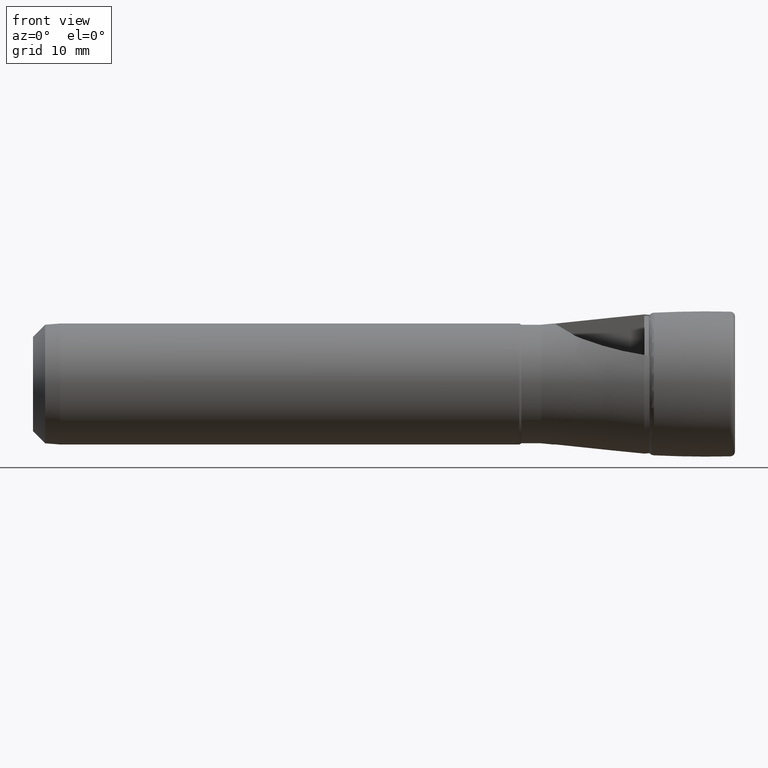
[diagram: clean part render]
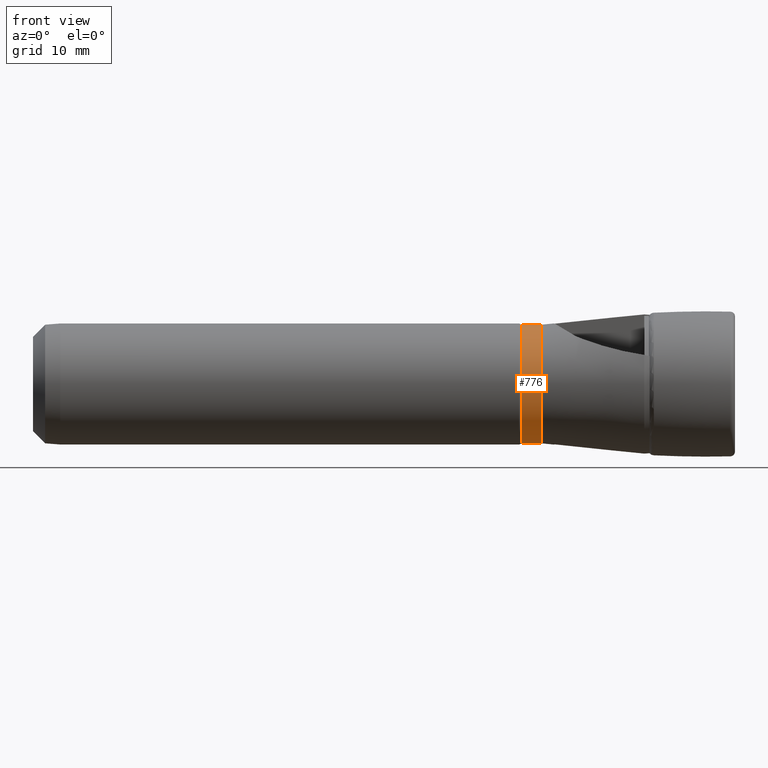
[diagram: same view with one face highlighted and labeled with its STEP entity id]
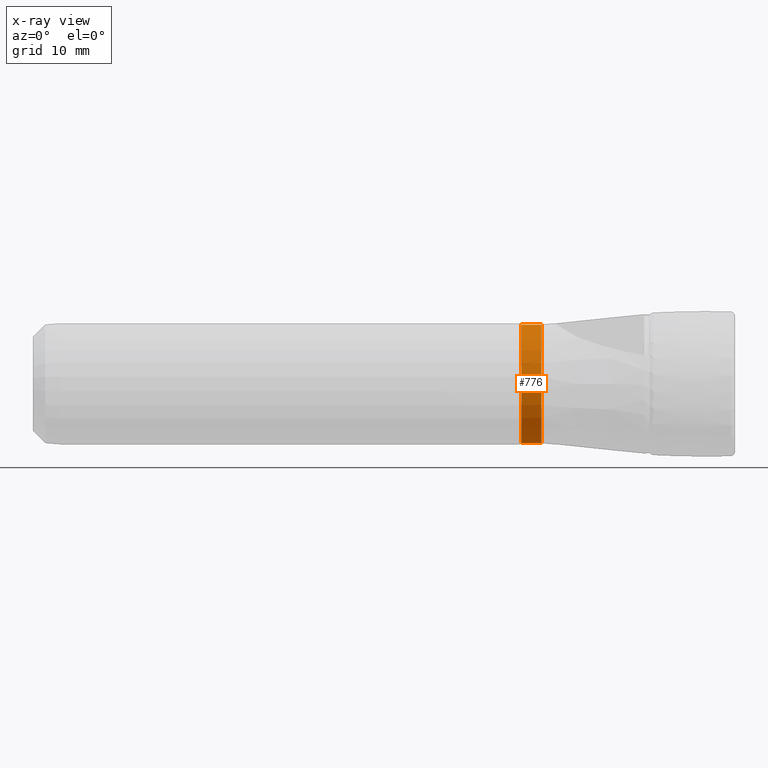
[diagram: x-ray of the same camera — body ghosted, the highlighted face saturated]
A machine part, front view. The second image highlights one B-rep face of the part: STEP entity #776.
The next image is the same camera in x-ray: the body ghosted, the highlighted face saturated — about 0% of this face is hidden behind the body in this view.
In plain terms, the highlighted cylindrical surface (partial cylindrical patch) has radius 4.9 mm, axis along (1, -0, -0).
Its self-contained STEP definition (entity closure, byte-faithful):
#391 = VECTOR ( 'NONE', #2694, 1000.000000000000000 ) ;
#403 = VECTOR ( 'NONE', #2687, 1000.000000000000000 ) ;
#472 = EDGE_LOOP ( 'NONE', ( #3098, #3140, #3177, #3194 ) ) ;
#776 = ADVANCED_FACE ( 'NONE', ( #1946 ), #1945, .T. ) ;
#796 = EDGE_CURVE ( 'NONE', #2418, #2414, #1371, .T. ) ;
#1119 = EDGE_CURVE ( 'NONE', #2391, #2379, #1451, .T. ) ;
#1178 = EDGE_CURVE ( 'NONE', #2391, #2418, #2683, .T. ) ;
#1180 = EDGE_CURVE ( 'NONE', #2379, #2414, #2690, .T. ) ;
#1352 = AXIS2_PLACEMENT_3D ( 'NONE', #2044, #2045, #2046 ) ;
#1358 = AXIS2_PLACEMENT_3D ( 'NONE', #2239, #2240, #2241 ) ;
#1371 = CIRCLE ( 'NONE', #1352, 4.899999999999998600 ) ;
#1425 = AXIS2_PLACEMENT_3D ( 'NONE', #1947, #1944, #1949 ) ;
#1451 = CIRCLE ( 'NONE', #1358, 4.899999999999998600 ) ;
#1944 = DIRECTION ( 'NONE',  ( 1.000000000000000000, -0.0000000000000000000, -0.0000000000000000000 ) ) ;
#1945 = CYLINDRICAL_SURFACE ( 'NONE', #1425, 4.899999999999998600 ) ;
#1946 = FACE_OUTER_BOUND ( 'NONE', #472, .T. ) ;
#1947 = CARTESIAN_POINT ( 'NONE',  ( 0.0000000000000000000, 0.0000000000000000000, 0.0000000000000000000 ) ) ;
#1949 = DIRECTION ( 'NONE',  ( 0.0000000000000000000, 0.0000000000000000000, -1.000000000000000000 ) ) ;
#2044 = CARTESIAN_POINT ( 'NONE',  ( -15.50000000000000200, 0.0000000000000000000, 0.0000000000000000000 ) ) ;
#2045 = DIRECTION ( 'NONE',  ( 1.000000000000000000, -0.0000000000000000000, -0.0000000000000000000 ) ) ;
#2046 = DIRECTION ( 'NONE',  ( 0.0000000000000000000, 0.0000000000000000000, -1.000000000000000000 ) ) ;
#2239 = CARTESIAN_POINT ( 'NONE',  ( -17.15358983848622600, 0.0000000000000000000, 0.0000000000000000000 ) ) ;
#2240 = DIRECTION ( 'NONE',  ( 1.000000000000000000, -0.0000000000000000000, -0.0000000000000000000 ) ) ;
#2241 = DIRECTION ( 'NONE',  ( 0.0000000000000000000, 0.0000000000000000000, -1.000000000000000000 ) ) ;
#2379 = VERTEX_POINT ( 'NONE', #2985 ) ;
#2391 = VERTEX_POINT ( 'NONE', #3024 ) ;
#2414 = VERTEX_POINT ( 'NONE', #3047 ) ;
#2418 = VERTEX_POINT ( 'NONE', #3051 ) ;
#2677 = CARTESIAN_POINT ( 'NONE',  ( 0.0000000000000000000, 6.000769315822029800E-016, 4.899999999999998600 ) ) ;
#2682 = CARTESIAN_POINT ( 'NONE',  ( 0.0000000000000000000, 0.0000000000000000000, -4.899999999999998600 ) ) ;
#2683 = LINE ( 'NONE', #2677, #403 ) ;
#2687 = DIRECTION ( 'NONE',  ( 1.000000000000000000, -0.0000000000000000000, -0.0000000000000000000 ) ) ;
#2690 = LINE ( 'NONE', #2682, #391 ) ;
#2694 = DIRECTION ( 'NONE',  ( 1.000000000000000000, -0.0000000000000000000, -0.0000000000000000000 ) ) ;
#2985 = CARTESIAN_POINT ( 'NONE',  ( -17.15358983848622600, 6.062001655779394600E-016, -4.899999999999998600 ) ) ;
#3024 = CARTESIAN_POINT ( 'NONE',  ( -17.15358983848622600, 0.0000000000000000000, 4.899999999999998600 ) ) ;
#3047 = CARTESIAN_POINT ( 'NONE',  ( -15.50000000000000200, 0.0000000000000000000, -4.899999999999998600 ) ) ;
#3051 = CARTESIAN_POINT ( 'NONE',  ( -15.50000000000000200, 6.521244205459655300E-016, 4.899999999999998600 ) ) ;
#3098 = ORIENTED_EDGE ( 'NONE', *, *, #1178, .F. ) ;
#3140 = ORIENTED_EDGE ( 'NONE', *, *, #1119, .T. ) ;
#3177 = ORIENTED_EDGE ( 'NONE', *, *, #1180, .T. ) ;
#3194 = ORIENTED_EDGE ( 'NONE', *, *, #796, .F. ) ;